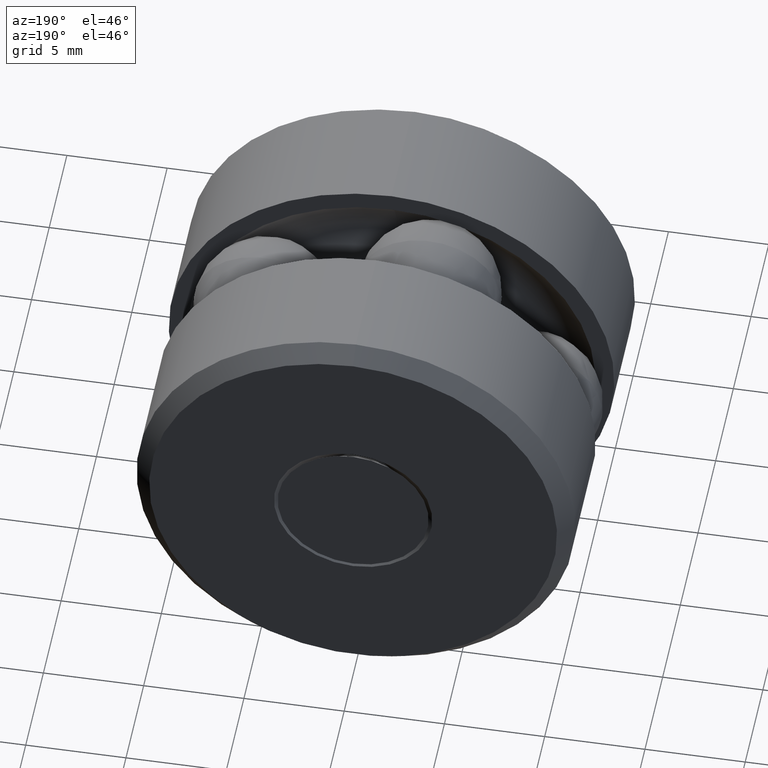
[diagram: clean part render]
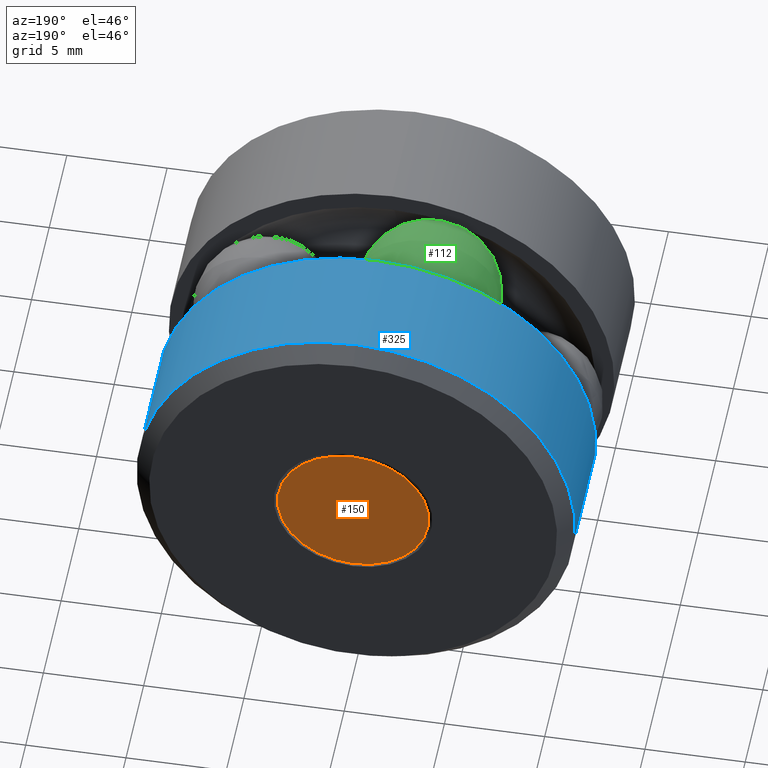
[diagram: same view with three faces highlighted in distinct colors, each labeled with its STEP entity id]
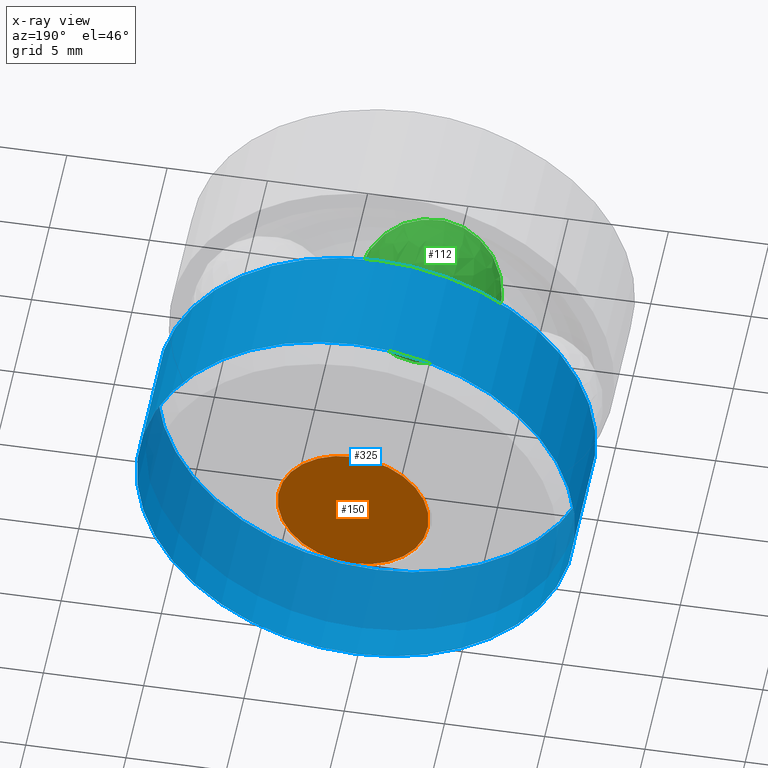
[diagram: x-ray of the same camera — body ghosted, the three highlighted faces saturated]
A machine part, auxiliary view with three faces highlighted in distinct colors.
The next image is the same camera in x-ray (body ghosted, the three faces saturated) — at least one of them is partly hidden behind the body in this view.
Their STEP definitions:

[orange] entity #150 — the highlighted planar face has unit normal (-0, 1, 0).
#59 = CARTESIAN_POINT ( 'NONE',  ( 0.0000000000000000000, 0.6875000000000000000, 0.0000000000000000000 ) ) ;
#120 = DIRECTION ( 'NONE',  ( -0.0000000000000000000, 1.000000000000000000, -0.0000000000000000000 ) ) ;
#132 = EDGE_LOOP ( 'NONE', ( #433 ) ) ;
#150 = ADVANCED_FACE ( 'NONE', ( #535 ), #321, .T. ) ;
#164 = CARTESIAN_POINT ( 'NONE',  ( 0.0000000000000000000, 0.6875000000000000000, 0.0000000000000000000 ) ) ;
#182 = DIRECTION ( 'NONE',  ( -0.0000000000000000000, 1.000000000000000000, 0.0000000000000000000 ) ) ;
#224 = CARTESIAN_POINT ( 'NONE',  ( 0.0000000000000000000, 0.6875000000000000000, 0.1484374999999991100 ) ) ;
#319 = DIRECTION ( 'NONE',  ( 0.0000000000000000000, 0.0000000000000000000, 1.000000000000000000 ) ) ;
#321 = PLANE ( 'NONE',  #512 ) ;
#335 = AXIS2_PLACEMENT_3D ( 'NONE', #59, #120, #526 ) ;
#433 = ORIENTED_EDGE ( 'NONE', *, *, #536, .T. ) ;
#454 = VERTEX_POINT ( 'NONE', #224 ) ;
#506 = CIRCLE ( 'NONE', #335, 0.1484374999999991100 ) ;
#512 = AXIS2_PLACEMENT_3D ( 'NONE', #164, #182, #319 ) ;
#526 = DIRECTION ( 'NONE',  ( 0.0000000000000000000, 0.0000000000000000000, 1.000000000000000000 ) ) ;
#535 = FACE_OUTER_BOUND ( 'NONE', #132, .T. ) ;
#536 = EDGE_CURVE ( 'NONE', #454, #454, #506, .T. ) ;

[blue] entity #325 — the highlighted cylindrical surface (bore or boss wall) has radius 10.9347 mm, axis along (-0, 1, -0).
#33 = CARTESIAN_POINT ( 'NONE',  ( 0.0000000000000000000, 0.6574999999999996400, 0.0000000000000000000 ) ) ;
#106 = AXIS2_PLACEMENT_3D ( 'NONE', #33, #213, #322 ) ;
#114 = EDGE_LOOP ( 'NONE', ( #486 ) ) ;
#124 = CYLINDRICAL_SURFACE ( 'NONE', #501, 0.4304999999999999400 ) ;
#213 = DIRECTION ( 'NONE',  ( -0.0000000000000000000, 1.000000000000000000, -0.0000000000000000000 ) ) ;
#214 = CIRCLE ( 'NONE', #534, 0.4304999999999999400 ) ;
#243 = DIRECTION ( 'NONE',  ( -0.0000000000000000000, 1.000000000000000000, -0.0000000000000000000 ) ) ;
#249 = CARTESIAN_POINT ( 'NONE',  ( 0.0000000000000000000, 0.0000000000000000000, 0.0000000000000000000 ) ) ;
#266 = VERTEX_POINT ( 'NONE', #327 ) ;
#322 = DIRECTION ( 'NONE',  ( 0.0000000000000000000, 0.0000000000000000000, 1.000000000000000000 ) ) ;
#325 = ADVANCED_FACE ( 'NONE', ( #374, #492 ), #124, .T. ) ;
#327 = CARTESIAN_POINT ( 'NONE',  ( 0.0000000000000000000, 0.6574999999999996400, 0.4304999999999999400 ) ) ;
#339 = ORIENTED_EDGE ( 'NONE', *, *, #373, .T. ) ;
#358 = CARTESIAN_POINT ( 'NONE',  ( 0.0000000000000000000, 0.4280500000000000400, 0.4304999999999999400 ) ) ;
#373 = EDGE_CURVE ( 'NONE', #480, #480, #214, .T. ) ;
#374 = FACE_OUTER_BOUND ( 'NONE', #538, .T. ) ;
#392 = EDGE_CURVE ( 'NONE', #266, #266, #530, .T. ) ;
#418 = CARTESIAN_POINT ( 'NONE',  ( 0.0000000000000000000, 0.4280500000000000400, 0.0000000000000000000 ) ) ;
#452 = DIRECTION ( 'NONE',  ( 0.0000000000000000000, 0.0000000000000000000, 1.000000000000000000 ) ) ;
#464 = DIRECTION ( 'NONE',  ( 0.0000000000000000000, 0.0000000000000000000, 1.000000000000000000 ) ) ;
#468 = DIRECTION ( 'NONE',  ( -0.0000000000000000000, 1.000000000000000000, -0.0000000000000000000 ) ) ;
#480 = VERTEX_POINT ( 'NONE', #358 ) ;
#486 = ORIENTED_EDGE ( 'NONE', *, *, #392, .F. ) ;
#492 = FACE_OUTER_BOUND ( 'NONE', #114, .T. ) ;
#501 = AXIS2_PLACEMENT_3D ( 'NONE', #249, #243, #452 ) ;
#530 = CIRCLE ( 'NONE', #106, 0.4304999999999999400 ) ;
#534 = AXIS2_PLACEMENT_3D ( 'NONE', #418, #468, #464 ) ;
#538 = EDGE_LOOP ( 'NONE', ( #339 ) ) ;

[green] entity #112 — the highlighted spherical surface has radius 3.5687 mm.
#68 = AXIS2_PLACEMENT_3D ( 'NONE', #127, #144, #143 ) ;
#112 = ADVANCED_FACE ( 'NONE', ( ), #209, .T. ) ;
#127 = CARTESIAN_POINT ( 'NONE',  ( -0.08899689437998406500, 0.3437500000000000000, 0.2739042766930044300 ) ) ;
#143 = DIRECTION ( 'NONE',  ( -0.3090169943749448400, 0.0000000000000000000, 0.9510565162951544200 ) ) ;
#144 = DIRECTION ( 'NONE',  ( 0.9510565162951544200, -0.0000000000000000000, 0.3090169943749448400 ) ) ;
#209 = SPHERICAL_SURFACE ( 'NONE', #68, 0.1405000000000000400 ) ;